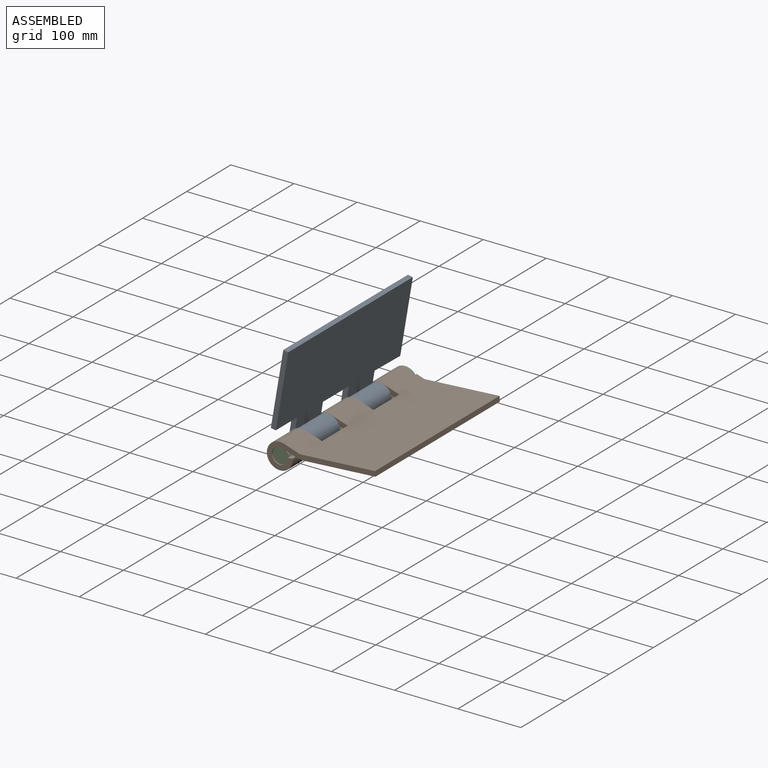
[diagram: assembled view]
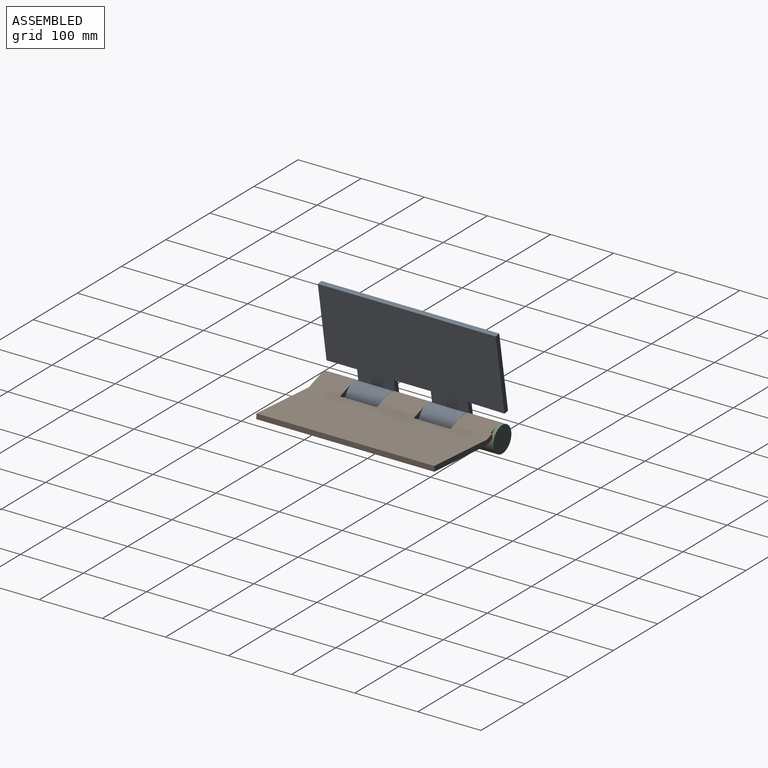
[diagram: assembled view, second angle]
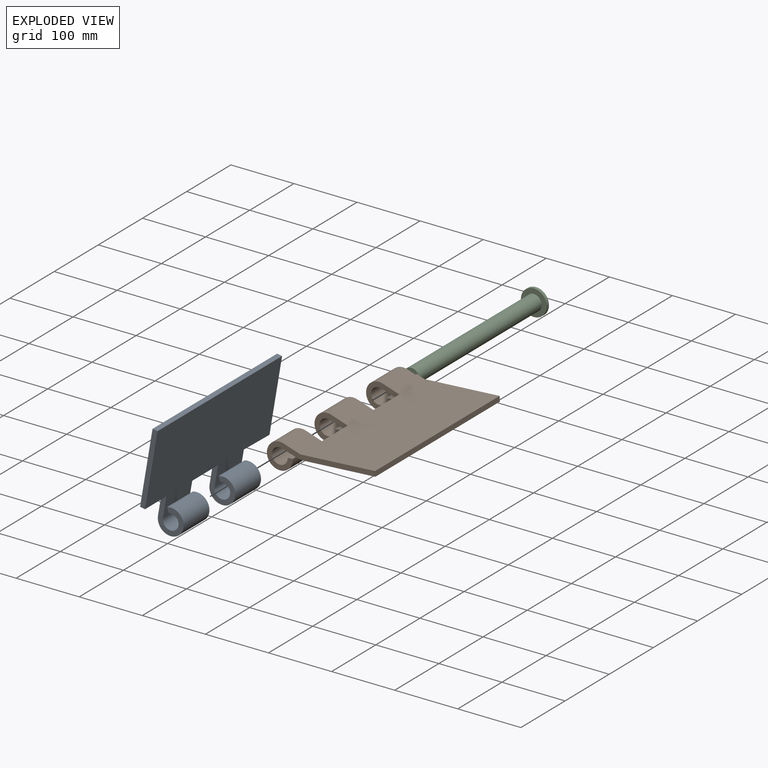
[diagram: exploded view]
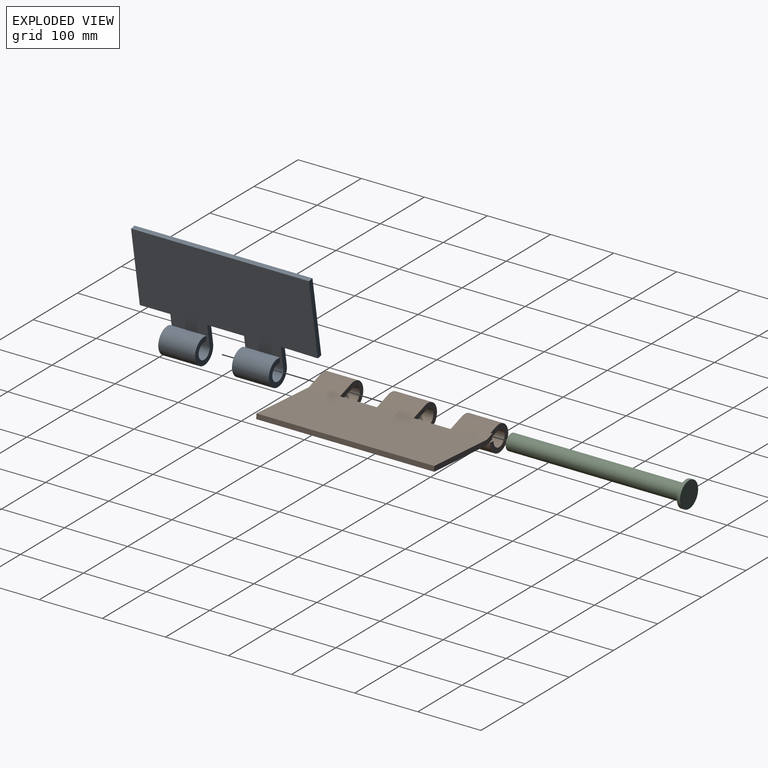
[diagram: exploded view, second angle]
ASSEMBLY  parts=3 mates=2
PART A: 18 faces, bbox 172.3x282x41 mm
  f0: cylinder r=20.5mm len=58.4mm, axis (0,1,0), area 6176.2mm2, adj f2,f7,f15,f17
  f1: cylinder r=20.5mm len=58.4mm, axis (0,1,0), area 6176.2mm2, adj f3,f7,f12,f14
  f2: plane 58.4x7.22mm, normal (0.43,0,-0.9), area 467.2mm2, adj f0,f4,f15,f17
  f3: plane 58.4x7.22mm, normal (0.43,0,-0.9), area 467.2mm2, adj f1,f5,f12,f14
  f4: cylinder r=12.5mm len=58.4mm, axis (0,1,0), area 3766mm2, adj f2,f6,f15,f17
  f5: cylinder r=12.5mm len=58.4mm, axis (0,1,0), area 3766mm2, adj f3,f6,f12,f14
  f6: plane 282x151.81mm, normal (0,0,1), area 37371mm2, adj f4,f5,f8,f9,f10,f11,f12,f13
  f7: plane 282x151.81mm, normal (0,0,-1), area 37371mm2, adj f0,f1,f8,f9,f10,f11,f12,f13
  f8: plane 118.69x8mm, normal (0,-1,0), area 949.5mm2, adj f6,f7,f10,f11
  f9: plane 119.8x8mm, normal (0,1,0), area 958.4mm2, adj f6,f7,f10,f16
  f10: plane 282x8mm, normal (-1,0,0), area 2256mm2, adj f6,f7,f8,f9
  f11: plane 48.4x8mm, normal (1,0,0), area 387.2mm2, adj f6,f7,f8,f12
  f12: plane 53.63x41mm, normal (0,-1,0), area 946mm2, adj f1,f3,f5,f6,f7,f11
  f13: plane 58.4x8mm, normal (1,0,0), area 467.2mm2, adj f6,f7,f14,f15
  f14: plane 53.63x41mm, normal (0,1,0), area 946mm2, adj f1,f3,f5,f6,f7,f13
  f15: plane 53.63x41mm, normal (0,-1,0), area 946mm2, adj f0,f2,f4,f6,f7,f13
  f16: plane 58.4x8mm, normal (1,-0.02,0), area 467.3mm2, adj f6,f7,f9,f17
  f17: plane 53.63x41mm, normal (0,1,0), area 946mm2, adj f0,f2,f4,f6,f7,f16
PART B: 29 faces, bbox 172.3x282x41 mm
  f0: plane 131.35x12.93mm, normal (0,1,0), area 1049.2mm2, adj f1,f9,f16,f17,f18,f19,f28
  f1: plane 57.44x25.15mm, normal (-0.37,0,-0.93), area 1515.6mm2, adj f0,f3,f19,f24,f27,f28
  f2: plane 58.4x25.15mm, normal (-0.37,0,-0.93), area 1582.4mm2, adj f4,f19,f21,f26
  f3: cylinder r=20.5mm len=54.5mm, axis (0,1,0), area 5691.8mm2, adj f1,f5,f24,f27
  f4: cylinder r=20.5mm len=58.4mm, axis (0,1,0), area 6098.6mm2, adj f2,f6,f21,f26
  f5: plane 54.5x8mm, normal (0,0,-1), area 436mm2, adj f3,f7,f24,f27
  f6: plane 58.4x8mm, normal (0,0,-1), area 467.2mm2, adj f4,f8,f21,f26
  f7: cylinder r=12.5mm len=54.5mm, axis (0,1,0), area 3457.6mm2, adj f5,f9,f24,f27
  f8: cylinder r=12.5mm len=58.4mm, axis (0,1,0), area 3704.7mm2, adj f6,f10,f21,f26
  f9: plane 57.44x21.49mm, normal (0.35,0,0.93), area 1269.9mm2, adj f0,f7,f16,f24,f27,f28
  f10: plane 58.4x21.49mm, normal (0.35,0,0.93), area 1342.4mm2, adj f8,f16,f21,f26
  f11: plane 49.36x25.15mm, normal (-0.37,0,-0.93), area 1337.5mm2, adj f12,f19,f20,f23
  f12: cylinder r=20.5mm len=49.36mm, axis (0,1,0), area 5155mm2, adj f11,f13,f20,f23
  f13: plane 49.36x8mm, normal (0,0,-1), area 394.9mm2, adj f12,f14,f20,f23
  f14: cylinder r=12.5mm len=49.36mm, axis (0,1,0), area 3131.5mm2, adj f13,f15,f20,f23
  f15: plane 49.36x21.49mm, normal (0.35,0,0.93), area 1134.7mm2, adj f14,f16,f20,f23
  f16: cylinder r=40mm len=282mm, axis (0,1,0), area 3249.4mm2, adj f0,f9,f10,f15,f17,f20,f21,f22
  f17: plane 282x111.74mm, normal (0,0,1), area 31509.3mm2, adj f0,f16,f18,f20
  f18: plane 282x8mm, normal (-1,0,0), area 2256mm2, adj f0,f17,f19,f20
  f19: plane 282x119.07mm, normal (0,0,-1), area 33569.2mm2, adj f0,f1,f2,f11,f18,f20,f21,f22
  f20: plane 172.35x41mm, normal (0,-1,0), area 1842.6mm2, adj f11,f12,f13,f14,f15,f16,f17,f18
  f21: plane 53.35x41mm, normal (0,-1,0), area 892.2mm2, adj f2,f4,f6,f8,f10,f16,f19,f22
  f22: plane 58.4x7.33mm, normal (1,0,0), area 428.3mm2, adj f16,f19,f21,f23
  f23: plane 53.35x41mm, normal (0,1,0), area 892.2mm2, adj f11,f12,f13,f14,f15,f16,f19,f22
  f24: plane 53.35x41mm, normal (0,-1,0), area 892.2mm2, adj f1,f3,f5,f7,f9,f16,f19,f25
  f25: plane 58.4x7.33mm, normal (1,0,0), area 428.3mm2, adj f16,f19,f24,f26
  f26: plane 53.35x41mm, normal (0,1,0), area 892.2mm2, adj f2,f4,f6,f8,f10,f16,f19,f25
  f27: plane 41x41mm, normal (0,1,0), area 793.4mm2, adj f1,f3,f5,f7,f9,f28
  f28: plane 8.27x2.93mm, normal (1,0,0), area 24.2mm2, adj f0,f1,f9,f27
PART C: 5 faces, bbox 41x282x41 mm
  f0: cylinder r=20.5mm len=41mm, axis (0,1,0), area 644mm2, adj f1,f2
  f1: plane 41x41mm, normal (0,-1,0), area 829.4mm2, adj f0,f3
  f2: plane 41x41mm, normal (0,1,0), area 1320.3mm2, adj f0
  f3: cylinder r=12.5mm len=277mm, axis (0,1,0), area 21755.5mm2, adj f1,f4
  f4: plane 25x25mm, normal (0,-1,0), area 490.9mm2, adj f3
PLACE A rot(axis=(0,1,0),99.6deg) t=(-102.69,140.54,33.39)mm
PLACE B rot(axis=(0,1,0),176.3deg) t=(196.68,139.88,52.85)mm
PLACE C t=(-140.19,136.94,-15.24)mm fixed
MATE revolute A.f4 <-> B.f7  axis (0,-1,0) through (-102.69,-93.06,33.39)mm
MATE revolute B.f7 <-> C.f0  axis (0,1,0) through (-102.69,136.94,33.39)mm
